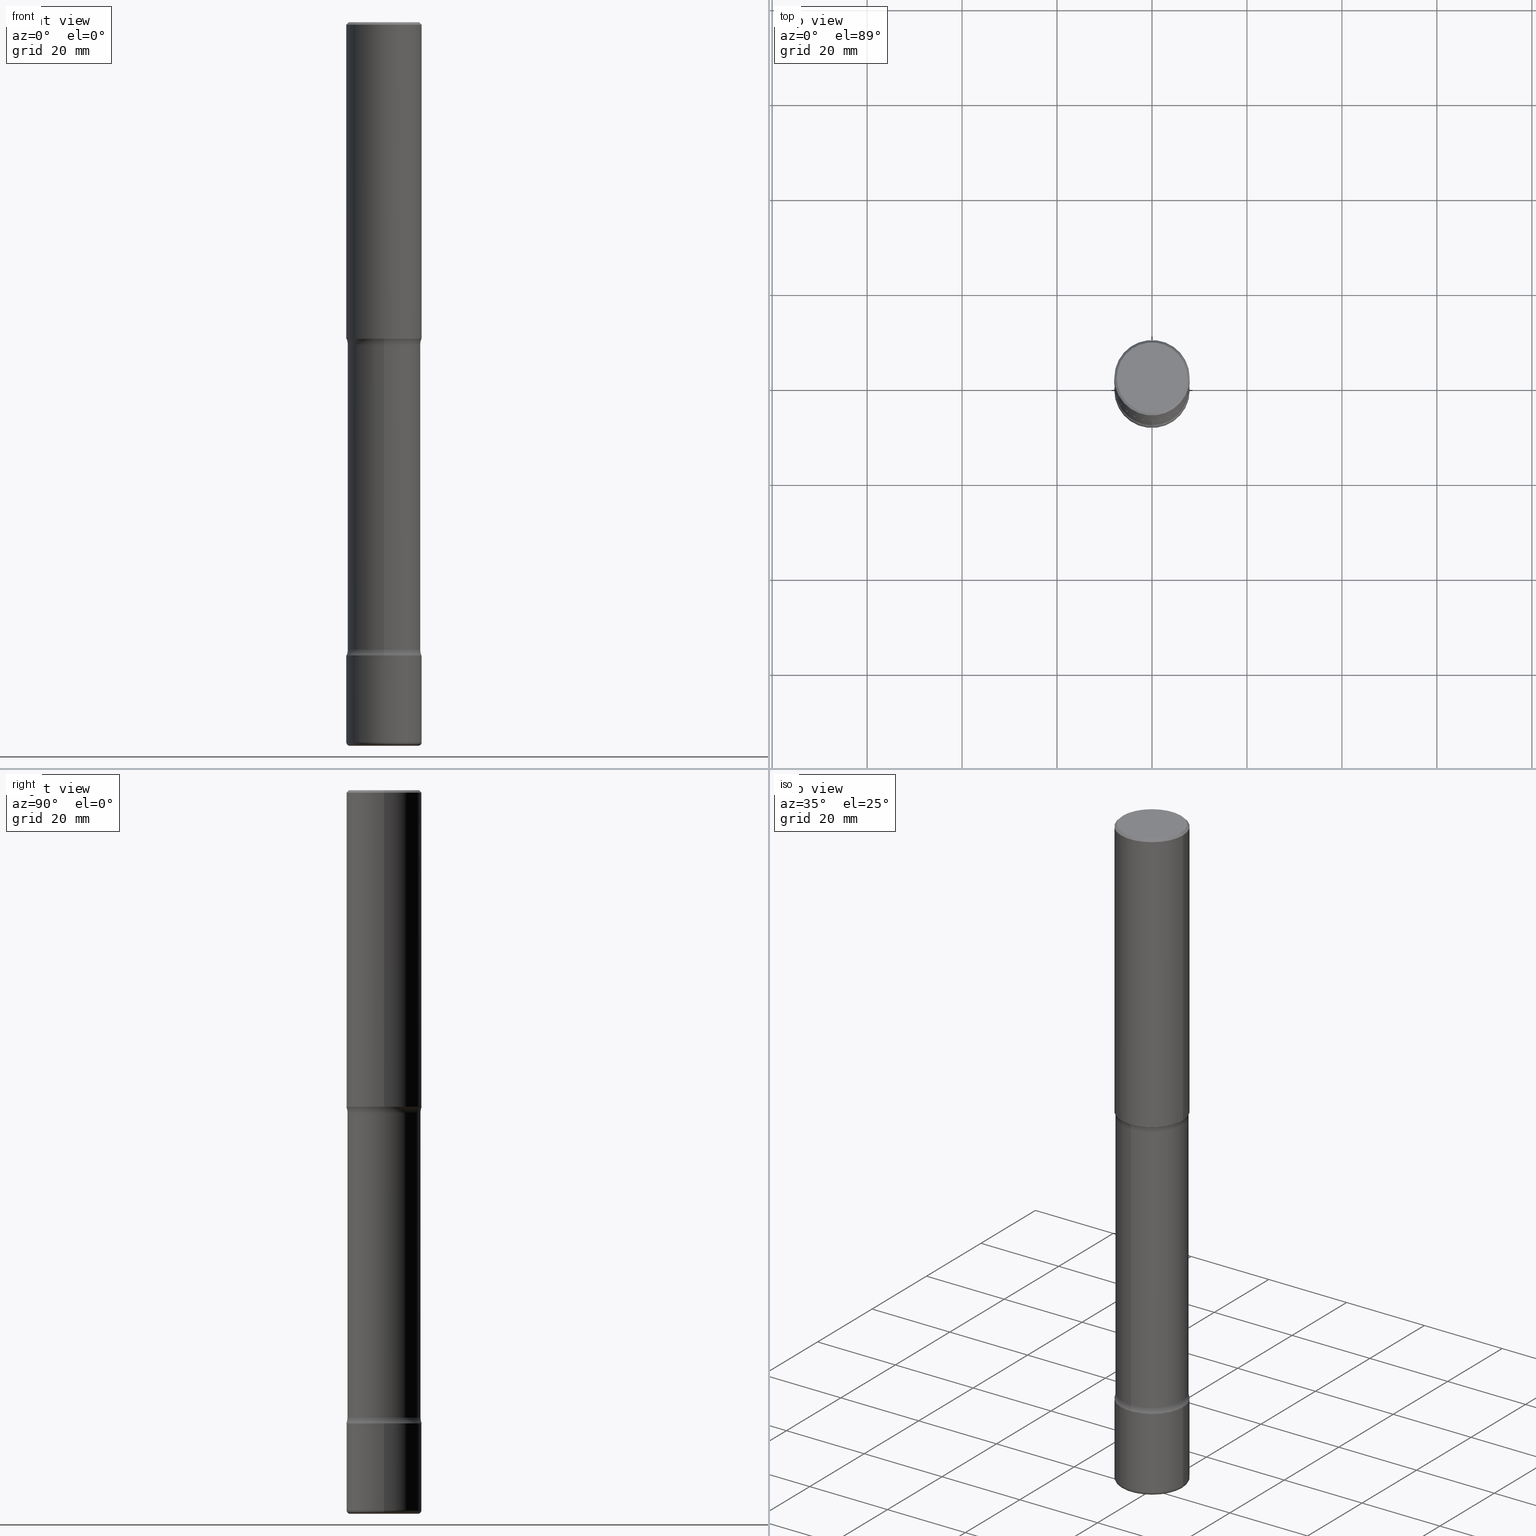
[diagram: canonical four-view strip — front | top / right | iso, engineering-drawing reading convention]
A machine part, canonical four-view strip (front | top / right | iso — engineering-drawing reading convention). The complete STEP part file that produces these views, byte-faithful:
ISO-10303-21;
HEADER;
FILE_DESCRIPTION (( 'STEP AP203' ),
    '1' );
FILE_NAME ('33517.STEP',
    '2024-03-01T22:43:29',
    ( '' ),
    ( '' ),
    'SwSTEP 2.0',
    'SolidWorks 2023',
    '' );
FILE_SCHEMA (( 'CONFIG_CONTROL_DESIGN' ));
ENDSEC;

DATA;
#1 = DIRECTION ( 'NONE',  ( 6.982962677686265922E-15, 1.000000000000000000, -3.172765739582314775E-15 ) ) ;
#2 = CARTESIAN_POINT ( 'NONE',  ( -2.075300644325741948E-15, -0.3025000000000210298, -5.999999999999999112 ) ) ;
#3 = VECTOR ( 'NONE', #497, 39.37007874015748143 ) ;
#4 = CARTESIAN_POINT ( 'NONE',  ( 4.890937612370273159E-31, -6.982962677686291609E-17, -0.02000000000000000042 ) ) ;
#5 = FACE_OUTER_BOUND ( 'NONE', #240, .T. ) ;
#6 = EDGE_CURVE ( 'NONE', #107, #528, #229, .T. ) ;
#7 = EDGE_LOOP ( 'NONE', ( #242, #445, #331, #189 ) ) ;
#8 = ADVANCED_FACE ( 'NONE', ( #440 ), #227, .T. ) ;
#9 = CIRCLE ( 'NONE', #527, 0.2825000000000000844 ) ;
#10 = LINE ( 'NONE', #378, #143 ) ;
#11 = CIRCLE ( 'NONE', #512, 0.1250000000000001943 ) ;
#12 = LOCAL_TIME ( 17, 43, 29.00000000000000000, #75 ) ;
#13 = VERTEX_POINT ( 'NONE', #552 ) ;
#14 = APPLICATION_CONTEXT ( 'configuration controlled 3d designs of mechanical parts and assemblies' ) ;
#15 = EDGE_LOOP ( 'NONE', ( #413, #69 ) ) ;
#16 = DIRECTION ( 'NONE',  ( -1.000000000000000000, 7.105427357600945061E-15, 0.000000000000000000 ) ) ;
#17 = EDGE_CURVE ( 'NONE', #279, #203, #368, .T. ) ;
#18 = ORIENTED_EDGE ( 'NONE', *, *, #385, .F. ) ;
#19 = DIRECTION ( 'NONE',  ( -2.445468806185136597E-29, 3.491481338843145583E-15, 1.000000000000000000 ) ) ;
#20 = VERTEX_POINT ( 'NONE', #343 ) ;
#21 = CONICAL_SURFACE ( 'NONE', #164, 0.3125000000000005551, 0.7853981633974463916 ) ;
#22 = VERTEX_POINT ( 'NONE', #116 ) ;
#23 = CIRCLE ( 'NONE', #230, 0.3125000000000001665 ) ;
#24 = ORIENTED_EDGE ( 'NONE', *, *, #551, .F. ) ;
#25 = VERTEX_POINT ( 'NONE', #35 ) ;
#26 = DIRECTION ( 'NONE',  ( 6.982962677686265922E-15, 1.000000000000000000, -3.496765431890244692E-15 ) ) ;
#27 = EDGE_LOOP ( 'NONE', ( #24, #145, #334, #228 ) ) ;
#28 = PRODUCT ( '33517', '33517', '', ( #423 ) ) ;
#29 = VERTEX_POINT ( 'NONE', #32 ) ;
#30 = PLANE ( 'NONE',  #165 ) ;
#31 = EDGE_LOOP ( 'NONE', ( #110, #282, #100, #56 ) ) ;
#32 = CARTESIAN_POINT ( 'NONE',  ( 2.112346210000159735E-15, 0.3024999999999904987, -2.673989794855665902 ) ) ;
#33 = AXIS2_PLACEMENT_3D ( 'NONE', #303, #539, #140 ) ;
#34 = EDGE_CURVE ( 'NONE', #102, #487, #118, .T. ) ;
#35 = CARTESIAN_POINT ( 'NONE',  ( 0.3125000000000001665, -2.051245286570347946E-14, -5.250000000000000888 ) ) ;
#36 = CARTESIAN_POINT ( 'NONE',  ( -1.043851414335219820E-46, 1.490343170380447200E-32, 4.268512490100411279E-18 ) ) ;
#37 = DIRECTION ( 'NONE',  ( 2.668026719628616344E-29, -3.172765739582314775E-15, -1.000000000000000000 ) ) ;
#38 = CARTESIAN_POINT ( 'NONE',  ( 0.000000000000000000, 0.000000000000000000, 0.000000000000000000 ) ) ;
#39 = DIRECTION ( 'NONE',  ( 2.668026719628616344E-29, -3.172765739582314775E-15, -1.000000000000000000 ) ) ;
#40 = AXIS2_PLACEMENT_3D ( 'NONE', #294, #117, #146 ) ;
#41 =( LENGTH_UNIT ( ) NAMED_UNIT ( * ) SI_UNIT ( $, .METRE. ) );
#42 = COORDINATED_UNIVERSAL_TIME_OFFSET ( 5, 0, .BEHIND. ) ;
#43 = DIRECTION ( 'NONE',  ( -2.445468806185136597E-29, 3.491481338843145583E-15, 1.000000000000000000 ) ) ;
#44 = ADVANCED_FACE ( 'NONE', ( #465 ), #550, .T. ) ;
#45 = CARTESIAN_POINT ( 'NONE',  ( -0.3125000000000002220, -1.862369754364326626E-14, -5.969999999999999751 ) ) ;
#46 = FACE_OUTER_BOUND ( 'NONE', #139, .T. ) ;
#47 = EDGE_CURVE ( 'NONE', #277, #185, #442, .T. ) ;
#48 = APPROVAL_STATUS ( 'not_yet_approved' ) ;
#49 = AXIS2_PLACEMENT_3D ( 'NONE', #152, #366, #60 ) ;
#50 = CARTESIAN_POINT ( 'NONE',  ( -0.3125000000000005551, 2.112346210000099388E-15, -0.02000000000000000042 ) ) ;
#51 = CARTESIAN_POINT ( 'NONE',  ( 0.000000000000000000, 0.000000000000000000, 0.000000000000000000 ) ) ;
#52 = ORIENTED_EDGE ( 'NONE', *, *, #385, .T. ) ;
#53 = ORIENTED_EDGE ( 'NONE', *, *, #508, .T. ) ;
#54 = AXIS2_PLACEMENT_3D ( 'NONE', #195, #148, #486 ) ;
#55 = AXIS2_PLACEMENT_3D ( 'NONE', #548, #157, #544 ) ;
#56 = ORIENTED_EDGE ( 'NONE', *, *, #477, .F. ) ;
#57 = DATE_AND_TIME ( #101, #538 ) ;
#58 = ORIENTED_EDGE ( 'NONE', *, *, #466, .F. ) ;
#59 = DIRECTION ( 'NONE',  ( -6.982962677686267499E-15, -1.000000000000000000, 0.000000000000000000 ) ) ;
#60 = DIRECTION ( 'NONE',  ( 1.000000000000000000, -6.982962677686267499E-15, 4.883557194083113462E-29 ) ) ;
#61 = EDGE_LOOP ( 'NONE', ( #187, #335 ) ) ;
#62 = CARTESIAN_POINT ( 'NONE',  ( -0.3125000000000007216, 2.220446049250318208E-15, -1.537167215704661595E-29 ) ) ;
#63 = CARTESIAN_POINT ( 'NONE',  ( 2.985216544710942680E-15, 0.4274999999999904432, -2.673989794855665902 ) ) ;
#64 = ADVANCED_FACE ( 'NONE', ( #507 ), #511, .T. ) ;
#65 = CARTESIAN_POINT ( 'NONE',  ( 1.459944877292526494E-28, -2.084414359289357934E-14, -5.969999999999999751 ) ) ;
#66 = CIRCLE ( 'NONE', #383, 0.2925000000000006484 ) ;
#67 = EDGE_LOOP ( 'NONE', ( #498, #53, #149, #411 ) ) ;
#68 = CARTESIAN_POINT ( 'NONE',  ( 2.985216544711005789E-15, 0.4274999999999818390, -5.201010205144337206 ) ) ;
#69 = ORIENTED_EDGE ( 'NONE', *, *, #495, .T. ) ;
#70 = CARTESIAN_POINT ( 'NONE',  ( -2.109603134314618744E-15, -0.3025000000000181433, -5.201010205144335430 ) ) ;
#71 = PLANE ( 'NONE',  #172 ) ;
#72 = EDGE_LOOP ( 'NONE', ( #541, #400, #367, #493 ) ) ;
#73 = PLANE ( 'NONE',  #456 ) ;
#74 = FACE_OUTER_BOUND ( 'NONE', #530, .T. ) ;
#75 = COORDINATED_UNIVERSAL_TIME_OFFSET ( 5, 0, .BEHIND. ) ;
#76 = AXIS2_PLACEMENT_3D ( 'NONE', #65, #113, #375 ) ;
#77 = CIRCLE ( 'NONE', #536, 0.3125000000000005551 ) ;
#78 =( CONVERSION_BASED_UNIT ( 'INCH', #513 ) LENGTH_UNIT ( ) NAMED_UNIT ( #268 ) );
#79 = DIRECTION ( 'NONE',  ( 1.000000000000000000, -6.982962677686265922E-15, 4.876176775795935793E-29 ) ) ;
#80 = CYLINDRICAL_SURFACE ( 'NONE', #276, 0.3125000000000001665 ) ;
#81 = DIRECTION ( 'NONE',  ( -2.445468806185136597E-29, 3.491481338843145583E-15, 1.000000000000000000 ) ) ;
#82 = DIRECTION ( 'NONE',  ( -2.445468806185136597E-29, 3.491481338843145583E-15, 1.000000000000000000 ) ) ;
#83 = DIRECTION ( 'NONE',  ( 0.000000000000000000, 0.000000000000000000, 1.000000000000000000 ) ) ;
#84 = CLOSED_SHELL ( 'NONE', ( #537, #424, #451, #198, #359, #170, #250, #373 ) ) ;
#85 = TOROIDAL_SURFACE ( 'NONE', #193, 0.4274999999999999911, 0.1250000000000001943 ) ;
#86 = DIRECTION ( 'NONE',  ( 6.860497997771530774E-15, 1.000000000000000000, 0.000000000000000000 ) ) ;
#87 = PERSON_AND_ORGANIZATION ( #514, #394 ) ;
#88 = CARTESIAN_POINT ( 'NONE',  ( -2.143905624303476607E-15, -0.3125000000000185962, -5.250000000000000000 ) ) ;
#89 = APPLICATION_PROTOCOL_DEFINITION ( 'international standard', 'config_control_design', 1994, #270 ) ;
#90 = CARTESIAN_POINT ( 'NONE',  ( -0.3125000000000005551, 2.112346210000099388E-15, -0.02000000000000000042 ) ) ;
#91 = PERSON_AND_ORGANIZATION ( #514, #394 ) ;
#92 = DIRECTION ( 'NONE',  ( 2.668026719628616344E-29, -3.172765739582314775E-15, -1.000000000000000000 ) ) ;
#93 = ADVANCED_FACE ( 'NONE', ( #163 ), #71, .F. ) ;
#94 = SHAPE_DEFINITION_REPRESENTATION ( #200, #291 ) ;
#95 = DIRECTION ( 'NONE',  ( -1.000000000000000000, 6.982962677686265922E-15, -4.876176775795935793E-29 ) ) ;
#96 = AXIS2_PLACEMENT_3D ( 'NONE', #434, #92, #1 ) ;
#97 = VECTOR ( 'NONE', #425, 39.37007874015748143 ) ;
#98 = EDGE_CURVE ( 'NONE', #487, #25, #370, .T. ) ;
#99 = EDGE_LOOP ( 'NONE', ( #134, #364, #58, #133 ) ) ;
#100 = ORIENTED_EDGE ( 'NONE', *, *, #553, .F. ) ;
#101 = CALENDAR_DATE ( 2024, 1, 3 ) ;
#102 = VERTEX_POINT ( 'NONE', #45 ) ;
#103 = ORIENTED_EDGE ( 'NONE', *, *, #516, .T. ) ;
#104 = CARTESIAN_POINT ( 'NONE',  ( 1.270800515080793348E-28, -1.817484388621929912E-14, -5.201010205144336318 ) ) ;
#105 = CARTESIAN_POINT ( 'NONE',  ( -0.2825000000000001399, -1.883686036437129492E-14, -5.969999999999999751 ) ) ;
#106 = EDGE_CURVE ( 'NONE', #280, #326, #130, .T. ) ;
#107 = VERTEX_POINT ( 'NONE', #50 ) ;
#108 = LINE ( 'NONE', #62, #214 ) ;
#109 = FACE_OUTER_BOUND ( 'NONE', #67, .T. ) ;
#110 = ORIENTED_EDGE ( 'NONE', *, *, #141, .T. ) ;
#111 = CARTESIAN_POINT ( 'NONE',  ( 2.112346210000246116E-15, 0.3024999999999796185, -6.000000000000001776 ) ) ;
#112 = AXIS2_PLACEMENT_3D ( 'NONE', #356, #468, #79 ) ;
#113 = DIRECTION ( 'NONE',  ( -2.445468806185136597E-29, 3.491481338843145583E-15, 1.000000000000000000 ) ) ;
#114 = TOROIDAL_SURFACE ( 'NONE', #393, 0.4275000000000007128, 0.1250000000000000000 ) ;
#115 = CARTESIAN_POINT ( 'NONE',  ( -0.3125000000000001665, -1.736676426165973636E-14, -5.250000000000000888 ) ) ;
#116 = CARTESIAN_POINT ( 'NONE',  ( -2.143905624303553126E-15, -0.3125000000000112133, -2.624999999999999556 ) ) ;
#117 = DIRECTION ( 'NONE',  ( 2.668026719628616344E-29, -3.172765739582314775E-15, -1.000000000000000000 ) ) ;
#118 = LINE ( 'NONE', #209, #272 ) ;
#119 = CARTESIAN_POINT ( 'NONE',  ( 1.483973127219342911E-28, -2.070985133361325197E-14, -6.000000000000000888 ) ) ;
#120 = VECTOR ( 'NONE', #524, 39.37007874015748143 ) ;
#121 = COORDINATED_UNIVERSAL_TIME_OFFSET ( 5, 0, .BEHIND. ) ;
#122 = AXIS2_PLACEMENT_3D ( 'NONE', #262, #432, #533 ) ;
#123 = DIRECTION ( 'NONE',  ( 1.000000000000000000, -6.982962677686261977E-15, 0.000000000000000000 ) ) ;
#124 = DIRECTION ( 'NONE',  ( -6.982962677686265922E-15, -1.000000000000000000, 3.172765739582314775E-15 ) ) ;
#125 = CARTESIAN_POINT ( 'NONE',  ( 0.000000000000000000, 0.000000000000000000, 0.000000000000000000 ) ) ;
#126 = PRODUCT_DEFINITION ( 'UNKNOWN', '', #166, #321 ) ;
#127 = CARTESIAN_POINT ( 'NONE',  ( 4.890937612370273159E-31, -6.982962677686291609E-17, -0.02000000000000000042 ) ) ;
#128 = AXIS2_PLACEMENT_3D ( 'NONE', #224, #480, #517 ) ;
#129 = DIRECTION ( 'NONE',  ( 1.000000000000000000, -6.860497997771530774E-15, 4.844702020008874772E-29 ) ) ;
#130 = LINE ( 'NONE', #2, #120 ) ;
#131 = DIRECTION ( 'NONE',  ( -2.445468806185136597E-29, 3.491481338843145583E-15, 1.000000000000000000 ) ) ;
#132 = CARTESIAN_POINT ( 'NONE',  ( -2.109603134314693686E-15, -0.3025000000000108158, -2.673989794855663682 ) ) ;
#133 = ORIENTED_EDGE ( 'NONE', *, *, #404, .F. ) ;
#134 = ORIENTED_EDGE ( 'NONE', *, *, #308, .T. ) ;
#135 = CC_DESIGN_PERSON_AND_ORGANIZATION_ASSIGNMENT ( #317, #305, ( #166 ) ) ;
#136 = ORIENTED_EDGE ( 'NONE', *, *, #137, .T. ) ;
#137 = EDGE_CURVE ( 'NONE', #280, #22, #247, .T. ) ;
#138 = ORIENTED_EDGE ( 'NONE', *, *, #278, .F. ) ;
#139 = EDGE_LOOP ( 'NONE', ( #160, #231, #446, #419 ) ) ;
#140 = DIRECTION ( 'NONE',  ( 1.000000000000000000, -6.982962677686223323E-15, 0.000000000000000000 ) ) ;
#141 = EDGE_CURVE ( 'NONE', #443, #102, #379, .T. ) ;
#142 = AXIS2_PLACEMENT_3D ( 'NONE', #269, #131, #258 ) ;
#143 = VECTOR ( 'NONE', #505, 39.37007874015748143 ) ;
#144 = SECURITY_CLASSIFICATION ( '', '', #264 ) ;
#145 = ORIENTED_EDGE ( 'NONE', *, *, #167, .F. ) ;
#146 = DIRECTION ( 'NONE',  ( 6.982962677686266711E-15, 1.000000000000000000, -3.612360983357695736E-15 ) ) ;
#147 = ORIENTED_EDGE ( 'NONE', *, *, #491, .T. ) ;
#148 = DIRECTION ( 'NONE',  ( -2.445468806185136597E-29, 3.491481338843145583E-15, 1.000000000000000000 ) ) ;
#149 = ORIENTED_EDGE ( 'NONE', *, *, #404, .T. ) ;
#150 = ORIENTED_EDGE ( 'NONE', *, *, #255, .F. ) ;
#151 = DIRECTION ( 'NONE',  ( 1.000000000000000000, -6.982962677686267499E-15, 4.876067333457678827E-29 ) ) ;
#152 = CARTESIAN_POINT ( 'NONE',  ( 1.459944877292526494E-28, -2.084414359289357934E-14, -5.969999999999999751 ) ) ;
#153 = AXIS2_PLACEMENT_3D ( 'NONE', #51, #418, #248 ) ;
#154 = CIRCLE ( 'NONE', #363, 0.3025000000000006573 ) ;
#155 = DIRECTION ( 'NONE',  ( 2.668026719628616344E-29, -3.172765739582314775E-15, -1.000000000000000000 ) ) ;
#156 = AXIS2_PLACEMENT_3D ( 'NONE', #125, #83, #430 ) ;
#157 = DIRECTION ( 'NONE',  ( 2.668026719628616344E-29, -3.172765739582314775E-15, -1.000000000000000000 ) ) ;
#158 = APPROVAL_ROLE ( '' ) ;
#159 = DIRECTION ( 'NONE',  ( 2.668026719628616344E-29, -3.172765739582314775E-15, -1.000000000000000000 ) ) ;
#160 = ORIENTED_EDGE ( 'NONE', *, *, #304, .F. ) ;
#161 = LINE ( 'NONE', #90, #97 ) ;
#162 = DATE_AND_TIME ( #555, #403 ) ;
#163 = FACE_OUTER_BOUND ( 'NONE', #15, .T. ) ;
#164 = AXIS2_PLACEMENT_3D ( 'NONE', #4, #171, #168 ) ;
#165 = AXIS2_PLACEMENT_3D ( 'NONE', #289, #207, #199 ) ;
#166 = PRODUCT_DEFINITION_FORMATION_WITH_SPECIFIED_SOURCE ( 'ANY', '', #28, .NOT_KNOWN. ) ;
#167 = EDGE_CURVE ( 'NONE', #185, #277, #208, .T. ) ;
#168 = DIRECTION ( 'NONE',  ( -1.000000000000000000, 6.982962677686266711E-15, 0.000000000000000000 ) ) ;
#169 = DIRECTION ( 'NONE',  ( 1.000000000000000000, -6.982962677686268288E-15, 0.000000000000000000 ) ) ;
#170 = ADVANCED_FACE ( 'NONE', ( #5 ), #478, .F. ) ;
#171 = DIRECTION ( 'NONE',  ( 2.445468806185136597E-29, -3.491481338843145583E-15, -1.000000000000000000 ) ) ;
#172 = AXIS2_PLACEMENT_3D ( 'NONE', #522, #392, #95 ) ;
#173 = AXIS2_PLACEMENT_3D ( 'NONE', #63, #204, #455 ) ;
#174 = APPROVAL_PERSON_ORGANIZATION ( #482, #546, #342 ) ;
#175 = PLANE ( 'NONE',  #112 ) ;
#176 = EDGE_CURVE ( 'NONE', #326, #192, #221, .T. ) ;
#177 = UNCERTAINTY_MEASURE_WITH_UNIT (LENGTH_MEASURE( 1.000000000000000082E-05 ), #78, 'distance_accuracy_value', 'NONE');
#178 = DIRECTION ( 'NONE',  ( -2.668026719628615784E-29, 3.172765739582314775E-15, 1.000000000000000000 ) ) ;
#179 = APPROVAL_DATE_TIME ( #274, #401 ) ;
#180 = APPROVAL_STATUS ( 'not_yet_approved' ) ;
#181 = ORIENTED_EDGE ( 'NONE', *, *, #47, .T. ) ;
#182 = CC_DESIGN_PERSON_AND_ORGANIZATION_ASSIGNMENT ( #559, #252, ( #144 ) ) ;
#183 = TOROIDAL_SURFACE ( 'NONE', #500, 0.4274999999999999911, 0.1250000000000001943 ) ;
#184 = AXIS2_PLACEMENT_3D ( 'NONE', #119, #37, #212 ) ;
#185 = VERTEX_POINT ( 'NONE', #357 ) ;
#186 =( NAMED_UNIT ( * ) SI_UNIT ( $, .STERADIAN. ) SOLID_ANGLE_UNIT ( ) );
#187 = ORIENTED_EDGE ( 'NONE', *, *, #516, .F. ) ;
#188 = ADVANCED_FACE ( 'NONE', ( #46 ), #21, .T. ) ;
#189 = ORIENTED_EDGE ( 'NONE', *, *, #6, .F. ) ;
#190 = CARTESIAN_POINT ( 'NONE',  ( 1.483973127219342911E-28, -2.070985133361325197E-14, -6.000000000000000888 ) ) ;
#191 = AXIS2_PLACEMENT_3D ( 'NONE', #266, #43, #123 ) ;
#192 = VERTEX_POINT ( 'NONE', #215 ) ;
#193 = AXIS2_PLACEMENT_3D ( 'NONE', #336, #547, #338 ) ;
#194 = AXIS2_PLACEMENT_3D ( 'NONE', #241, #415, #376 ) ;
#195 = CARTESIAN_POINT ( 'NONE',  ( 4.890937612370273159E-31, -6.982962677686291609E-17, -0.02000000000000000042 ) ) ;
#196 = EDGE_LOOP ( 'NONE', ( #531, #136, #235, #360 ) ) ;
#197 = ORIENTED_EDGE ( 'NONE', *, *, #47, .F. ) ;
#198 = ADVANCED_FACE ( 'NONE', ( #388 ), #295, .F. ) ;
#199 = DIRECTION ( 'NONE',  ( 6.982962677686265922E-15, 1.000000000000000000, -3.172765739582314775E-15 ) ) ;
#200 = PRODUCT_DEFINITION_SHAPE ( 'NONE', 'NONE',  #126 ) ;
#201 = CARTESIAN_POINT ( 'NONE',  ( 6.419355616235983567E-29, -9.165138514463256612E-15, -2.625000000000000000 ) ) ;
#202 = DIRECTION ( 'NONE',  ( -1.000000000000000000, 6.982962677686265922E-15, -4.876176775795935793E-29 ) ) ;
#203 = VERTEX_POINT ( 'NONE', #427 ) ;
#204 = DIRECTION ( 'NONE',  ( -1.000000000000000000, 6.982962677686265922E-15, -4.883557194083112901E-29 ) ) ;
#205 = DIRECTION ( 'NONE',  ( -1.000000000000000000, 6.982962677686265922E-15, -4.883557194083112901E-29 ) ) ;
#206 = VERTEX_POINT ( 'NONE', #220 ) ;
#207 = DIRECTION ( 'NONE',  ( 2.668026719628615784E-29, -3.172765739582314775E-15, -1.000000000000000000 ) ) ;
#208 = CIRCLE ( 'NONE', #128, 0.3125000000000001665 ) ;
#209 = CARTESIAN_POINT ( 'NONE',  ( -0.3125000000000001665, 2.220446049250314264E-15, -1.537167215704658792E-29 ) ) ;
#210 = APPROVAL_PERSON_ORGANIZATION ( #226, #358, #158 ) ;
#211 = EDGE_CURVE ( 'NONE', #540, #20, #322, .T. ) ;
#212 = DIRECTION ( 'NONE',  ( 6.982962677686265922E-15, 1.000000000000000000, -3.612360983357699681E-15 ) ) ;
#213 = CARTESIAN_POINT ( 'NONE',  ( 1.467281283711081958E-28, -2.094888803305887271E-14, -6.000000000000000888 ) ) ;
#214 = VECTOR ( 'NONE', #236, 39.37007874015748143 ) ;
#215 = CARTESIAN_POINT ( 'NONE',  ( 2.112346210000222450E-15, 0.3024999999999818390, -5.201010205144337206 ) ) ;
#216 = DIRECTION ( 'NONE',  ( 1.000000000000000000, -6.982962677686267499E-15, 4.876067333457678827E-29 ) ) ;
#217 = APPROVAL_DATE_TIME ( #162, #546 ) ;
#218 = ADVANCED_FACE ( 'NONE', ( #470 ), #175, .F. ) ;
#219 = CARTESIAN_POINT ( 'NONE',  ( 1.270800515080793348E-28, -1.817484388621929912E-14, -5.201010205144336318 ) ) ;
#220 = CARTESIAN_POINT ( 'NONE',  ( 2.182175836777024217E-15, 0.3124999999999911182, -2.625000000000000444 ) ) ;
#221 = CIRCLE ( 'NONE', #526, 0.3024999999999999911 ) ;
#222 = CIRCLE ( 'NONE', #122, 0.3125000000000000555 ) ;
#223 = APPROVAL_PERSON_ORGANIZATION ( #87, #401, #510 ) ;
#224 = CARTESIAN_POINT ( 'NONE',  ( 1.283871123247196938E-28, -1.833027702892651638E-14, -5.250000000000000888 ) ) ;
#225 = PERSON_AND_ORGANIZATION_ROLE ( 'creator' ) ;
#226 = PERSON_AND_ORGANIZATION ( #514, #394 ) ;
#227 = CYLINDRICAL_SURFACE ( 'NONE', #153, 0.3125000000000001665 ) ;
#228 = ORIENTED_EDGE ( 'NONE', *, *, #466, .T. ) ;
#229 = CIRCLE ( 'NONE', #54, 0.3125000000000005551 ) ;
#230 = AXIS2_PLACEMENT_3D ( 'NONE', #251, #431, #261 ) ;
#231 = ORIENTED_EDGE ( 'NONE', *, *, #437, .F. ) ;
#232 = ORIENTED_EDGE ( 'NONE', *, *, #308, .F. ) ;
#233 = CARTESIAN_POINT ( 'NONE',  ( 1.283871123247196938E-28, -1.833027702892651638E-14, -5.250000000000000888 ) ) ;
#234 = CARTESIAN_POINT ( 'NONE',  ( -0.3125000000000008327, -2.397038021369739380E-15, -2.625000000000000000 ) ) ;
#235 = ORIENTED_EDGE ( 'NONE', *, *, #354, .T. ) ;
#236 = DIRECTION ( 'NONE',  ( -2.445468806185136877E-29, 3.491481338843145188E-15, 1.000000000000000000 ) ) ;
#237 = DIRECTION ( 'NONE',  ( 7.105427357601001859E-15, 1.000000000000000000, -3.491481338843145583E-15 ) ) ;
#238 = AXIS2_PLACEMENT_3D ( 'NONE', #382, #159, #556 ) ;
#239 = CIRCLE ( 'NONE', #40, 0.3025000000000006573 ) ;
#240 = EDGE_LOOP ( 'NONE', ( #488, #181 ) ) ;
#241 = CARTESIAN_POINT ( 'NONE',  ( 0.000000000000000000, 0.000000000000000000, 0.000000000000000000 ) ) ;
#242 = ORIENTED_EDGE ( 'NONE', *, *, #491, .F. ) ;
#243 = CC_DESIGN_DATE_AND_TIME_ASSIGNMENT ( #312, #433, ( #144 ) ) ;
#244 = CYLINDRICAL_SURFACE ( 'NONE', #194, 0.3125000000000007216 ) ;
#245 = CARTESIAN_POINT ( 'NONE',  ( 1.467281283711081958E-28, -2.094888803305887271E-14, -6.000000000000000888 ) ) ;
#246 = CALENDAR_DATE ( 2024, 1, 3 ) ;
#247 = CIRCLE ( 'NONE', #259, 0.1250000000000000000 ) ;
#248 = DIRECTION ( 'NONE',  ( 1.000000000000000000, -6.982962677686266711E-15, 4.876176775795935232E-29 ) ) ;
#249 = TOROIDAL_SURFACE ( 'NONE', #49, 0.2825000000000001399, 0.03000000000000021053 ) ;
#250 = ADVANCED_FACE ( 'NONE', ( #254 ), #183, .F. ) ;
#251 = CARTESIAN_POINT ( 'NONE',  ( 1.283871123247196938E-28, -1.833027702892651638E-14, -5.250000000000000888 ) ) ;
#252 = PERSON_AND_ORGANIZATION_ROLE ( 'classification_officer' ) ;
#253 = CC_DESIGN_PERSON_AND_ORGANIZATION_ASSIGNMENT ( #444, #225, ( #126 ) ) ;
#254 = FACE_OUTER_BOUND ( 'NONE', #27, .T. ) ;
#255 = EDGE_CURVE ( 'NONE', #20, #540, #9, .T. ) ;
#256 = CARTESIAN_POINT ( 'NONE',  ( -0.2825000000000000844, -1.878265117408992254E-14, -6.000000000000000888 ) ) ;
#257 = PERSON_AND_ORGANIZATION_ROLE ( 'design_supplier' ) ;
#258 = DIRECTION ( 'NONE',  ( 1.000000000000000000, -6.982962677686271444E-15, 0.000000000000000000 ) ) ;
#259 = AXIS2_PLACEMENT_3D ( 'NONE', #348, #318, #436 ) ;
#260 = AXIS2_PLACEMENT_3D ( 'NONE', #341, #461, #26 ) ;
#261 = DIRECTION ( 'NONE',  ( 1.000000000000000000, -6.982962677686271444E-15, 0.000000000000000000 ) ) ;
#262 = CARTESIAN_POINT ( 'NONE',  ( 1.459944877292526494E-28, -2.084414359289357934E-14, -5.969999999999999751 ) ) ;
#263 = CALENDAR_DATE ( 2024, 1, 3 ) ;
#264 = SECURITY_CLASSIFICATION_LEVEL ( 'unclassified' ) ;
#265 = MANIFOLD_SOLID_BREP ( 'Body-Move/Copy2[4]', #84 ) ;
#266 = CARTESIAN_POINT ( 'NONE',  ( 1.459944877292526494E-28, -2.084414359289357934E-14, -5.969999999999999751 ) ) ;
#267 = MANIFOLD_SOLID_BREP ( 'Body-Move/Copy2[1]', #520 ) ;
#268 = DIMENSIONAL_EXPONENTS ( 1.000000000000000000, 0.000000000000000000, 0.000000000000000000, 0.000000000000000000, 0.000000000000000000, 0.000000000000000000, 0.000000000000000000 ) ;
#269 = CARTESIAN_POINT ( 'NONE',  ( 1.283871123247196938E-28, -1.833027702892651638E-14, -5.250000000000000888 ) ) ;
#270 = APPLICATION_CONTEXT ( 'configuration controlled 3d designs of mechanical parts and assemblies' ) ;
#271 = MANIFOLD_SOLID_BREP ( 'Body-Move/Copy2[2]', #399 ) ;
#272 = VECTOR ( 'NONE', #306, 39.37007874015748143 ) ;
#273 = PERSON_AND_ORGANIZATION_ROLE ( 'design_owner' ) ;
#274 = DATE_AND_TIME ( #263, #474 ) ;
#275 = ADVANCED_FACE ( 'NONE', ( #518 ), #421, .T. ) ;
#276 = AXIS2_PLACEMENT_3D ( 'NONE', #352, #554, #471 ) ;
#277 = VERTEX_POINT ( 'NONE', #88 ) ;
#278 = EDGE_CURVE ( 'NONE', #102, #443, #222, .T. ) ;
#279 = VERTEX_POINT ( 'NONE', #234 ) ;
#280 = VERTEX_POINT ( 'NONE', #132 ) ;
#281 = EDGE_LOOP ( 'NONE', ( #410, #542, #484, #292 ) ) ;
#282 = ORIENTED_EDGE ( 'NONE', *, *, #34, .T. ) ;
#283 = CIRCLE ( 'NONE', #173, 0.1250000000000000000 ) ;
#284 = EDGE_LOOP ( 'NONE', ( #197, #330, #450, #454 ) ) ;
#285 = DIRECTION ( 'NONE',  ( 2.668026719628616344E-29, -3.172765739582314775E-15, -1.000000000000000000 ) ) ;
#286 = CYLINDRICAL_SURFACE ( 'NONE', #426, 0.3025000000000003242 ) ;
#287 = ORIENTED_EDGE ( 'NONE', *, *, #525, .F. ) ;
#288 = LINE ( 'NONE', #545, #340 ) ;
#289 = CARTESIAN_POINT ( 'NONE',  ( 6.419355616235983567E-29, -9.165138514463256612E-15, -2.625000000000000000 ) ) ;
#290 = DIRECTION ( 'NONE',  ( 1.000000000000000000, -6.982962677686265922E-15, 4.876176775795935793E-29 ) ) ;
#291 = ADVANCED_BREP_SHAPE_REPRESENTATION ( '33517', ( #267, #271, #265, #156 ), #521 ) ;
#292 = ORIENTED_EDGE ( 'NONE', *, *, #557, .F. ) ;
#293 = ORIENTED_EDGE ( 'NONE', *, *, #137, .F. ) ;
#294 = CARTESIAN_POINT ( 'NONE',  ( 5.965847175110887226E-29, -1.015720010523015908E-14, -2.673989794855665014 ) ) ;
#295 = TOROIDAL_SURFACE ( 'NONE', #96, 0.4275000000000007128, 0.1250000000000000000 ) ;
#296 = CC_DESIGN_PERSON_AND_ORGANIZATION_ASSIGNMENT ( #91, #257, ( #166 ) ) ;
#297 = AXIS2_PLACEMENT_3D ( 'NONE', #36, #82, #216 ) ;
#298 = CC_DESIGN_APPROVAL ( #401, ( #144 ) ) ;
#299 = DIRECTION ( 'NONE',  ( -2.445468806185136597E-29, 3.491481338843145583E-15, 1.000000000000000000 ) ) ;
#300 = CARTESIAN_POINT ( 'NONE',  ( 0.3125000000000002220, -2.302631942967053926E-14, -5.969999999999999751 ) ) ;
#301 = DIRECTION ( 'NONE',  ( -2.445468806185136597E-29, 3.491481338843145583E-15, 1.000000000000000000 ) ) ;
#302 = CARTESIAN_POINT ( 'NONE',  ( 5.965847175110887226E-29, -1.015720010523015908E-14, -2.673989794855665014 ) ) ;
#303 = CARTESIAN_POINT ( 'NONE',  ( 0.2825000000000001399, -2.281683054933995252E-14, -5.969999999999999751 ) ) ;
#304 = EDGE_CURVE ( 'NONE', #407, #528, #10, .T. ) ;
#305 = PERSON_AND_ORGANIZATION_ROLE ( 'creator' ) ;
#306 = DIRECTION ( 'NONE',  ( -2.445468806185136877E-29, 3.491481338843145188E-15, 1.000000000000000000 ) ) ;
#307 = VECTOR ( 'NONE', #414, 39.37007874015748143 ) ;
#308 = EDGE_CURVE ( 'NONE', #29, #280, #239, .T. ) ;
#309 = DIRECTION ( 'NONE',  ( 1.000000000000000000, -6.982962677686274599E-15, 0.000000000000000000 ) ) ;
#310 = DIRECTION ( 'NONE',  ( 6.982962677686266711E-15, 1.000000000000000000, -3.172765739582314775E-15 ) ) ;
#311 = FACE_OUTER_BOUND ( 'NONE', #31, .T. ) ;
#312 = DATE_AND_TIME ( #387, #428 ) ;
#313 = PRODUCT_RELATED_PRODUCT_CATEGORY ( 'detail', '', ( #28 ) ) ;
#314 = DIRECTION ( 'NONE',  ( 2.445468806185136597E-29, -3.491481338843145583E-15, -1.000000000000000000 ) ) ;
#315 = DIRECTION ( 'NONE',  ( -2.445468806185136597E-29, 3.491481338843145583E-15, 1.000000000000000000 ) ) ;
#316 = CIRCLE ( 'NONE', #33, 0.03000000000000019318 ) ;
#317 = PERSON_AND_ORGANIZATION ( #514, #394 ) ;
#318 = DIRECTION ( 'NONE',  ( 1.000000000000000000, -6.860497997771530774E-15, 4.844702020008874772E-29 ) ) ;
#319 = CARTESIAN_POINT ( 'NONE',  ( 1.467281283711081958E-28, -2.094888803305887271E-14, -6.000000000000000888 ) ) ;
#320 = EDGE_CURVE ( 'NONE', #29, #206, #283, .T. ) ;
#321 = DESIGN_CONTEXT ( 'detailed design', #270, 'design' ) ;
#322 = CIRCLE ( 'NONE', #361, 0.2825000000000000844 ) ;
#323 = AXIS2_PLACEMENT_3D ( 'NONE', #233, #532, #494 ) ;
#324 = EDGE_LOOP ( 'NONE', ( #18, #328 ) ) ;
#325 = EDGE_LOOP ( 'NONE', ( #103, #147, #287, #496 ) ) ;
#326 = VERTEX_POINT ( 'NONE', #70 ) ;
#327 = ORIENTED_EDGE ( 'NONE', *, *, #477, .T. ) ;
#328 = ORIENTED_EDGE ( 'NONE', *, *, #354, .F. ) ;
#329 = CIRCLE ( 'NONE', #439, 0.1250000000000001943 ) ;
#330 = ORIENTED_EDGE ( 'NONE', *, *, #551, .T. ) ;
#331 = ORIENTED_EDGE ( 'NONE', *, *, #462, .T. ) ;
#332 = FACE_OUTER_BOUND ( 'NONE', #325, .T. ) ;
#333 = DIRECTION ( 'NONE',  ( 2.668026719628616344E-29, -3.172765739582314775E-15, -1.000000000000000000 ) ) ;
#334 = ORIENTED_EDGE ( 'NONE', *, *, #469, .T. ) ;
#335 = ORIENTED_EDGE ( 'NONE', *, *, #17, .F. ) ;
#336 = CARTESIAN_POINT ( 'NONE',  ( 1.271890821733103427E-28, -1.815923007439421067E-14, -5.201010205144336318 ) ) ;
#337 = DIRECTION ( 'NONE',  ( -2.445468806185136877E-29, 3.491481338843145188E-15, 1.000000000000000000 ) ) ;
#338 = DIRECTION ( 'NONE',  ( 6.982962677686266711E-15, 1.000000000000000000, -3.172765739582314775E-15 ) ) ;
#339 = EDGE_CURVE ( 'NONE', #540, #102, #549, .T. ) ;
#340 = VECTOR ( 'NONE', #337, 39.37007874015748143 ) ;
#341 = CARTESIAN_POINT ( 'NONE',  ( 5.835141093446850211E-29, -1.000176696252294024E-14, -2.625000000000000000 ) ) ;
#342 = APPROVAL_ROLE ( '' ) ;
#343 = CARTESIAN_POINT ( 'NONE',  ( 0.2825000000000000844, -2.292157498950524589E-14, -6.000000000000000888 ) ) ;
#344 = EDGE_CURVE ( 'NONE', #20, #443, #316, .T. ) ;
#345 = DATE_AND_TIME ( #246, #12 ) ;
#346 = CIRCLE ( 'NONE', #297, 0.2925000000000006484 ) ;
#347 = ORIENTED_EDGE ( 'NONE', *, *, #211, .F. ) ;
#348 = CARTESIAN_POINT ( 'NONE',  ( -2.932862894047274901E-15, -0.4275000000000109268, -2.673989794855663682 ) ) ;
#349 = CC_DESIGN_DATE_AND_TIME_ASSIGNMENT ( #57, #479, ( #126 ) ) ;
#350 = DIRECTION ( 'NONE',  ( 1.000000000000000000, -6.982962677686274599E-15, 0.000000000000000000 ) ) ;
#351 = DIRECTION ( 'NONE',  ( 1.000000000000000000, -6.982962677686269866E-15, 0.000000000000000000 ) ) ;
#352 = CARTESIAN_POINT ( 'NONE',  ( 0.000000000000000000, 0.000000000000000000, 0.000000000000000000 ) ) ;
#353 = DIRECTION ( 'NONE',  ( -2.445468806185136597E-29, 3.491481338843145583E-15, 1.000000000000000000 ) ) ;
#354 = EDGE_CURVE ( 'NONE', #22, #206, #490, .T. ) ;
#355 = APPROVAL_DATE_TIME ( #345, #358 ) ;
#356 = CARTESIAN_POINT ( 'NONE',  ( 6.419355616235983567E-29, -9.165138514463256612E-15, -2.625000000000000000 ) ) ;
#357 = CARTESIAN_POINT ( 'NONE',  ( 2.182175836777088115E-15, 0.3124999999999819589, -5.250000000000001776 ) ) ;
#358 = APPROVAL ( #391, 'UNSPECIFIED' ) ;
#359 = ADVANCED_FACE ( 'NONE', ( #417 ), #30, .F. ) ;
#360 = ORIENTED_EDGE ( 'NONE', *, *, #320, .F. ) ;
#361 = AXIS2_PLACEMENT_3D ( 'NONE', #319, #353, #309 ) ;
#362 = ORIENTED_EDGE ( 'NONE', *, *, #34, .F. ) ;
#363 = AXIS2_PLACEMENT_3D ( 'NONE', #302, #509, #389 ) ;
#364 = ORIENTED_EDGE ( 'NONE', *, *, #106, .T. ) ;
#365 = EDGE_LOOP ( 'NONE', ( #395, #416 ) ) ;
#366 = DIRECTION ( 'NONE',  ( -2.445468806185136597E-29, 3.491481338843145583E-15, 1.000000000000000000 ) ) ;
#367 = ORIENTED_EDGE ( 'NONE', *, *, #141, .F. ) ;
#368 = CIRCLE ( 'NONE', #420, 0.3125000000000008327 ) ;
#369 = DIRECTION ( 'NONE',  ( 6.982962677686265922E-15, 1.000000000000000000, -3.612360983357699681E-15 ) ) ;
#370 = CIRCLE ( 'NONE', #142, 0.3125000000000001665 ) ;
#371 = CIRCLE ( 'NONE', #402, 0.3024999999999999911 ) ;
#372 = ORIENTED_EDGE ( 'NONE', *, *, #339, .F. ) ;
#373 = ADVANCED_FACE ( 'NONE', ( #109 ), #286, .T. ) ;
#374 = EDGE_LOOP ( 'NONE', ( #362, #452, #327, #441 ) ) ;
#375 = DIRECTION ( 'NONE',  ( 1.000000000000000000, -6.982962677686267499E-15, 4.883557194083113462E-29 ) ) ;
#376 = DIRECTION ( 'NONE',  ( 1.000000000000000000, -6.982962677686265922E-15, 4.876176775795935793E-29 ) ) ;
#377 = CARTESIAN_POINT ( 'NONE',  ( 0.2925000000000006484, -2.110215457714323481E-15, 4.268512490114932791E-18 ) ) ;
#378 = CARTESIAN_POINT ( 'NONE',  ( 0.3125000000000005551, -2.213735251080470461E-15, -0.02000000000000000042 ) ) ;
#379 = CIRCLE ( 'NONE', #191, 0.3125000000000000555 ) ;
#380 = CIRCLE ( 'NONE', #260, 0.3125000000000011102 ) ;
#381 = CC_DESIGN_APPROVAL ( #546, ( #166 ) ) ;
#382 = CARTESIAN_POINT ( 'NONE',  ( 1.283871123247196938E-28, -1.833027702892651638E-14, -5.250000000000000888 ) ) ;
#383 = AXIS2_PLACEMENT_3D ( 'NONE', #501, #19, #151 ) ;
#384 = DIRECTION ( 'NONE',  ( 6.982962677686265922E-15, 1.000000000000000000, -3.612360983357703625E-15 ) ) ;
#385 = EDGE_CURVE ( 'NONE', #206, #22, #380, .T. ) ;
#386 =( NAMED_UNIT ( * ) PLANE_ANGLE_UNIT ( ) SI_UNIT ( $, .RADIAN. ) );
#387 = CALENDAR_DATE ( 2024, 1, 3 ) ;
#388 = FACE_OUTER_BOUND ( 'NONE', #534, .T. ) ;
#389 = DIRECTION ( 'NONE',  ( 6.982962677686266711E-15, 1.000000000000000000, -3.612360983357695736E-15 ) ) ;
#390 = DIRECTION ( 'NONE',  ( 2.668026719628616344E-29, -3.172765739582314775E-15, -1.000000000000000000 ) ) ;
#391 = APPROVAL_STATUS ( 'not_yet_approved' ) ;
#392 = DIRECTION ( 'NONE',  ( 2.438088387897960049E-29, -3.491481338843145188E-15, -1.000000000000000000 ) ) ;
#393 = AXIS2_PLACEMENT_3D ( 'NONE', #412, #155, #457 ) ;
#394 = ORGANIZATION ( 'UNSPECIFIED', 'UNSPECIFIED', '' ) ;
#395 = ORIENTED_EDGE ( 'NONE', *, *, #553, .T. ) ;
#396 = CARTESIAN_POINT ( 'NONE',  ( 1.283871123247196938E-28, -1.833027702892651638E-14, -5.250000000000000888 ) ) ;
#397 = ADVANCED_FACE ( 'NONE', ( #448 ), #406, .F. ) ;
#398 = EDGE_LOOP ( 'NONE', ( #150, #347 ) ) ;
#399 = CLOSED_SHELL ( 'NONE', ( #476, #275, #188, #93, #218, #44 ) ) ;
#400 = ORIENTED_EDGE ( 'NONE', *, *, #339, .T. ) ;
#401 = APPROVAL ( #180, 'UNSPECIFIED' ) ;
#402 = AXIS2_PLACEMENT_3D ( 'NONE', #104, #285, #447 ) ;
#403 = LOCAL_TIME ( 17, 43, 29.00000000000000000, #506 ) ;
#404 = EDGE_CURVE ( 'NONE', #29, #192, #499, .T. ) ;
#405 = ORIENTED_EDGE ( 'NONE', *, *, #211, .T. ) ;
#406 = PLANE ( 'NONE',  #323 ) ;
#407 = VERTEX_POINT ( 'NONE', #377 ) ;
#408 = FACE_OUTER_BOUND ( 'NONE', #284, .T. ) ;
#409 = ADVANCED_FACE ( 'NONE', ( #74 ), #249, .T. ) ;
#410 = ORIENTED_EDGE ( 'NONE', *, *, #495, .F. ) ;
#411 = ORIENTED_EDGE ( 'NONE', *, *, #176, .F. ) ;
#412 = CARTESIAN_POINT ( 'NONE',  ( 5.919175872498657581E-29, -1.022403606693645108E-14, -2.673989794855665014 ) ) ;
#413 = ORIENTED_EDGE ( 'NONE', *, *, #437, .T. ) ;
#414 = DIRECTION ( 'NONE',  ( 2.668026719628616344E-29, -3.172765739582314775E-15, -1.000000000000000000 ) ) ;
#415 = DIRECTION ( 'NONE',  ( -2.445468806185136597E-29, 3.491481338843145583E-15, 1.000000000000000000 ) ) ;
#416 = ORIENTED_EDGE ( 'NONE', *, *, #98, .T. ) ;
#417 = FACE_OUTER_BOUND ( 'NONE', #324, .T. ) ;
#418 = DIRECTION ( 'NONE',  ( -2.445468806185136597E-29, 3.491481338843145583E-15, 1.000000000000000000 ) ) ;
#419 = ORIENTED_EDGE ( 'NONE', *, *, #6, .T. ) ;
#420 = AXIS2_PLACEMENT_3D ( 'NONE', #201, #299, #422 ) ;
#421 = CONICAL_SURFACE ( 'NONE', #472, 0.3125000000000005551, 0.7853981633974463916 ) ;
#422 = DIRECTION ( 'NONE',  ( 1.000000000000000000, -6.982962677686269866E-15, 0.000000000000000000 ) ) ;
#423 = MECHANICAL_CONTEXT ( 'NONE', #14, 'mechanical' ) ;
#424 = ADVANCED_FACE ( 'NONE', ( #408 ), #85, .F. ) ;
#425 = DIRECTION ( 'NONE',  ( -0.7071067811865461294, 2.468850131082242072E-15, -0.7071067811865489050 ) ) ;
#426 = AXIS2_PLACEMENT_3D ( 'NONE', #190, #333, #369 ) ;
#427 = CARTESIAN_POINT ( 'NONE',  ( 0.3125000000000008327, -1.134731435124022127E-14, -2.625000000000000000 ) ) ;
#428 = LOCAL_TIME ( 17, 43, 29.00000000000000000, #42 ) ;
#429 = CC_DESIGN_PERSON_AND_ORGANIZATION_ASSIGNMENT ( #481, #273, ( #28 ) ) ;
#430 = DIRECTION ( 'NONE',  ( 1.000000000000000000, 0.000000000000000000, 0.000000000000000000 ) ) ;
#431 = DIRECTION ( 'NONE',  ( -2.445468806185136597E-29, 3.491481338843145583E-15, 1.000000000000000000 ) ) ;
#432 = DIRECTION ( 'NONE',  ( -2.445468806185136597E-29, 3.491481338843145583E-15, 1.000000000000000000 ) ) ;
#433 = DATE_TIME_ROLE ( 'classification_date' ) ;
#434 = CARTESIAN_POINT ( 'NONE',  ( 5.919175872498657581E-29, -1.022403606693645108E-14, -2.673989794855665014 ) ) ;
#435 = AXIS2_PLACEMENT_3D ( 'NONE', #38, #301, #290 ) ;
#436 = DIRECTION ( 'NONE',  ( 6.860497997771529985E-15, 1.000000000000000000, 0.000000000000000000 ) ) ;
#437 = EDGE_CURVE ( 'NONE', #13, #407, #66, .T. ) ;
#438 = CIRCLE ( 'NONE', #502, 0.3125000000000008327 ) ;
#439 = AXIS2_PLACEMENT_3D ( 'NONE', #68, #205, #59 ) ;
#440 = FACE_OUTER_BOUND ( 'NONE', #374, .T. ) ;
#441 = ORIENTED_EDGE ( 'NONE', *, *, #98, .F. ) ;
#442 = CIRCLE ( 'NONE', #238, 0.3125000000000001665 ) ;
#443 = VERTEX_POINT ( 'NONE', #300 ) ;
#444 = PERSON_AND_ORGANIZATION ( #514, #394 ) ;
#445 = ORIENTED_EDGE ( 'NONE', *, *, #17, .T. ) ;
#446 = ORIENTED_EDGE ( 'NONE', *, *, #557, .T. ) ;
#447 = DIRECTION ( 'NONE',  ( 6.982962677686265922E-15, 1.000000000000000000, -3.612360983357703625E-15 ) ) ;
#448 = FACE_OUTER_BOUND ( 'NONE', #365, .T. ) ;
#449 = ADVANCED_FACE ( 'NONE', ( #458 ), #73, .T. ) ;
#450 = ORIENTED_EDGE ( 'NONE', *, *, #176, .T. ) ;
#451 = ADVANCED_FACE ( 'NONE', ( #489 ), #114, .F. ) ;
#452 = ORIENTED_EDGE ( 'NONE', *, *, #278, .T. ) ;
#453 = LINE ( 'NONE', #543, #3 ) ;
#454 = ORIENTED_EDGE ( 'NONE', *, *, #469, .F. ) ;
#455 = DIRECTION ( 'NONE',  ( -6.982962677686266711E-15, -1.000000000000000000, 0.000000000000000000 ) ) ;
#456 = AXIS2_PLACEMENT_3D ( 'NONE', #245, #535, #202 ) ;
#457 = DIRECTION ( 'NONE',  ( 6.982962677686265922E-15, 1.000000000000000000, -3.172765739582314775E-15 ) ) ;
#458 = FACE_OUTER_BOUND ( 'NONE', #398, .T. ) ;
#459 = DIRECTION ( 'NONE',  ( -2.445468806185136597E-29, 3.491481338843145583E-15, 1.000000000000000000 ) ) ;
#460 = APPLICATION_PROTOCOL_DEFINITION ( 'international standard', 'config_control_design', 1994, #14 ) ;
#461 = DIRECTION ( 'NONE',  ( 2.668026719628616344E-29, -3.172765739582314775E-15, -1.000000000000000000 ) ) ;
#462 = EDGE_CURVE ( 'NONE', #203, #528, #453, .T. ) ;
#463 = AXIS2_PLACEMENT_3D ( 'NONE', #396, #178, #124 ) ;
#464 = FACE_OUTER_BOUND ( 'NONE', #99, .T. ) ;
#465 = FACE_OUTER_BOUND ( 'NONE', #7, .T. ) ;
#466 = EDGE_CURVE ( 'NONE', #192, #326, #371, .T. ) ;
#467 = CARTESIAN_POINT ( 'NONE',  ( -2.932862894047202326E-15, -0.4275000000000181988, -5.201010205144335430 ) ) ;
#468 = DIRECTION ( 'NONE',  ( -2.438088387897960049E-29, 3.491481338843145188E-15, 1.000000000000000000 ) ) ;
#469 = EDGE_CURVE ( 'NONE', #185, #192, #329, .T. ) ;
#470 = FACE_OUTER_BOUND ( 'NONE', #61, .T. ) ;
#471 = DIRECTION ( 'NONE',  ( 1.000000000000000000, -6.982962677686266711E-15, 4.876176775795935232E-29 ) ) ;
#472 = AXIS2_PLACEMENT_3D ( 'NONE', #127, #314, #473 ) ;
#473 = DIRECTION ( 'NONE',  ( -1.000000000000000000, 6.982962677686266711E-15, 0.000000000000000000 ) ) ;
#474 = LOCAL_TIME ( 17, 43, 29.00000000000000000, #121 ) ;
#475 = CARTESIAN_POINT ( 'NONE',  ( 0.3125000000000005551, -2.213735251080470461E-15, -0.02000000000000000042 ) ) ;
#476 = ADVANCED_FACE ( 'NONE', ( #332 ), #244, .T. ) ;
#477 = EDGE_CURVE ( 'NONE', #443, #25, #288, .T. ) ;
#478 = PLANE ( 'NONE',  #463 ) ;
#479 = DATE_TIME_ROLE ( 'creation_date' ) ;
#480 = DIRECTION ( 'NONE',  ( 2.668026719628616344E-29, -3.172765739582314775E-15, -1.000000000000000000 ) ) ;
#481 = PERSON_AND_ORGANIZATION ( #514, #394 ) ;
#482 = PERSON_AND_ORGANIZATION ( #514, #394 ) ;
#483 = ORIENTED_EDGE ( 'NONE', *, *, #320, .T. ) ;
#484 = ORIENTED_EDGE ( 'NONE', *, *, #525, .T. ) ;
#485 = COORDINATED_UNIVERSAL_TIME_OFFSET ( 5, 0, .BEHIND. ) ;
#486 = DIRECTION ( 'NONE',  ( 1.000000000000000000, -6.982962677686268288E-15, 0.000000000000000000 ) ) ;
#487 = VERTEX_POINT ( 'NONE', #115 ) ;
#488 = ORIENTED_EDGE ( 'NONE', *, *, #167, .T. ) ;
#489 = FACE_OUTER_BOUND ( 'NONE', #196, .T. ) ;
#490 = CIRCLE ( 'NONE', #55, 0.3125000000000011102 ) ;
#491 = EDGE_CURVE ( 'NONE', #279, #107, #108, .T. ) ;
#492 = ORIENTED_EDGE ( 'NONE', *, *, #344, .T. ) ;
#493 = ORIENTED_EDGE ( 'NONE', *, *, #344, .F. ) ;
#494 = DIRECTION ( 'NONE',  ( -1.000000000000000000, 6.982962677686265922E-15, -4.876176775795935793E-29 ) ) ;
#495 = EDGE_CURVE ( 'NONE', #407, #13, #346, .T. ) ;
#496 = ORIENTED_EDGE ( 'NONE', *, *, #462, .F. ) ;
#497 = DIRECTION ( 'NONE',  ( -2.445468806185136877E-29, 3.491481338843145188E-15, 1.000000000000000000 ) ) ;
#498 = ORIENTED_EDGE ( 'NONE', *, *, #106, .F. ) ;
#499 = LINE ( 'NONE', #111, #307 ) ;
#500 = AXIS2_PLACEMENT_3D ( 'NONE', #560, #39, #310 ) ;
#501 = CARTESIAN_POINT ( 'NONE',  ( -1.043851414335219820E-46, 1.490343170380447200E-32, 4.268512490100411279E-18 ) ) ;
#502 = AXIS2_PLACEMENT_3D ( 'NONE', #504, #459, #351 ) ;
#503 = CC_DESIGN_APPROVAL ( #358, ( #126 ) ) ;
#504 = CARTESIAN_POINT ( 'NONE',  ( 6.419355616235983567E-29, -9.165138514463256612E-15, -2.625000000000000000 ) ) ;
#505 = DIRECTION ( 'NONE',  ( 0.7071067811865461294, -7.319954787623251312E-15, -0.7071067811865489050 ) ) ;
#506 = COORDINATED_UNIVERSAL_TIME_OFFSET ( 5, 0, .BEHIND. ) ;
#507 = FACE_OUTER_BOUND ( 'NONE', #72, .T. ) ;
#508 = EDGE_CURVE ( 'NONE', #280, #29, #154, .T. ) ;
#509 = DIRECTION ( 'NONE',  ( 2.668026719628616344E-29, -3.172765739582314775E-15, -1.000000000000000000 ) ) ;
#510 = APPROVAL_ROLE ( '' ) ;
#511 = TOROIDAL_SURFACE ( 'NONE', #76, 0.2825000000000001399, 0.03000000000000021053 ) ;
#512 = AXIS2_PLACEMENT_3D ( 'NONE', #467, #129, #86 ) ;
#513 = LENGTH_MEASURE_WITH_UNIT ( LENGTH_MEASURE( 0.02539999999999999897 ), #41 );
#514 = PERSON ( 'UNSPECIFIED', 'UNSPECIFIED', 'UNSPECIFIED', ('UNSPECIFIED'), ('UNSPECIFIED'), ('UNSPECIFIED') ) ;
#515 = CYLINDRICAL_SURFACE ( 'NONE', #184, 0.3025000000000003242 ) ;
#516 = EDGE_CURVE ( 'NONE', #203, #279, #438, .T. ) ;
#517 = DIRECTION ( 'NONE',  ( 6.982962677686265133E-15, 1.000000000000000000, -3.496765431890254947E-15 ) ) ;
#518 = FACE_OUTER_BOUND ( 'NONE', #281, .T. ) ;
#519 = CARTESIAN_POINT ( 'NONE',  ( 4.890937612370273159E-31, -6.982962677686291609E-17, -0.02000000000000000042 ) ) ;
#520 = CLOSED_SHELL ( 'NONE', ( #529, #64, #449, #409, #8, #397 ) ) ;
#521 =( GEOMETRIC_REPRESENTATION_CONTEXT ( 3 ) GLOBAL_UNCERTAINTY_ASSIGNED_CONTEXT ( ( #177 ) ) GLOBAL_UNIT_ASSIGNED_CONTEXT ( ( #78, #386, #186 ) ) REPRESENTATION_CONTEXT ( 'NONE', 'WORKASPACE' ) );
#522 = CARTESIAN_POINT ( 'NONE',  ( 2.042516583223237273E-15, 0.2925000000000006484, -1.019124035366572170E-15 ) ) ;
#523 = CC_DESIGN_SECURITY_CLASSIFICATION ( #144, ( #166 ) ) ;
#524 = DIRECTION ( 'NONE',  ( 2.668026719628616344E-29, -3.172765739582314775E-15, -1.000000000000000000 ) ) ;
#525 = EDGE_CURVE ( 'NONE', #528, #107, #77, .T. ) ;
#526 = AXIS2_PLACEMENT_3D ( 'NONE', #219, #390, #384 ) ;
#527 = AXIS2_PLACEMENT_3D ( 'NONE', #213, #81, #350 ) ;
#528 = VERTEX_POINT ( 'NONE', #475 ) ;
#529 = ADVANCED_FACE ( 'NONE', ( #311 ), #80, .T. ) ;
#530 = EDGE_LOOP ( 'NONE', ( #372, #405, #492, #138 ) ) ;
#531 = ORIENTED_EDGE ( 'NONE', *, *, #508, .F. ) ;
#532 = DIRECTION ( 'NONE',  ( 2.438088387897960049E-29, -3.491481338843145188E-15, -1.000000000000000000 ) ) ;
#533 = DIRECTION ( 'NONE',  ( 1.000000000000000000, -6.982962677686261977E-15, 0.000000000000000000 ) ) ;
#534 = EDGE_LOOP ( 'NONE', ( #293, #232, #483, #52 ) ) ;
#535 = DIRECTION ( 'NONE',  ( 2.438088387897960049E-29, -3.491481338843145188E-15, -1.000000000000000000 ) ) ;
#536 = AXIS2_PLACEMENT_3D ( 'NONE', #519, #315, #169 ) ;
#537 = ADVANCED_FACE ( 'NONE', ( #464 ), #515, .T. ) ;
#538 = LOCAL_TIME ( 17, 43, 29.00000000000000000, #485 ) ;
#539 = DIRECTION ( 'NONE',  ( -6.982962677686266711E-15, -1.000000000000000000, 3.491481338843145583E-15 ) ) ;
#540 = VERTEX_POINT ( 'NONE', #256 ) ;
#541 = ORIENTED_EDGE ( 'NONE', *, *, #255, .T. ) ;
#542 = ORIENTED_EDGE ( 'NONE', *, *, #304, .T. ) ;
#543 = CARTESIAN_POINT ( 'NONE',  ( 0.3125000000000007216, -2.182175836776963080E-15, 1.523805242436233439E-29 ) ) ;
#544 = DIRECTION ( 'NONE',  ( 6.982962677686265922E-15, 1.000000000000000000, -3.496765431890244692E-15 ) ) ;
#545 = CARTESIAN_POINT ( 'NONE',  ( 0.3125000000000001665, -2.182175836776959530E-15, 1.523805242436230636E-29 ) ) ;
#546 = APPROVAL ( #48, 'UNSPECIFIED' ) ;
#547 = DIRECTION ( 'NONE',  ( 2.668026719628616344E-29, -3.172765739582314775E-15, -1.000000000000000000 ) ) ;
#548 = CARTESIAN_POINT ( 'NONE',  ( 5.835141093446850211E-29, -1.000176696252294024E-14, -2.625000000000000000 ) ) ;
#549 = CIRCLE ( 'NONE', #558, 0.03000000000000019318 ) ;
#550 = CYLINDRICAL_SURFACE ( 'NONE', #435, 0.3125000000000007216 ) ;
#551 = EDGE_CURVE ( 'NONE', #277, #326, #11, .T. ) ;
#552 = CARTESIAN_POINT ( 'NONE',  ( -0.2925000000000006484, 2.077431396611668527E-15, 4.268512490086005323E-18 ) ) ;
#553 = EDGE_CURVE ( 'NONE', #25, #487, #23, .T. ) ;
#554 = DIRECTION ( 'NONE',  ( -2.445468806185136597E-29, 3.491481338843145583E-15, 1.000000000000000000 ) ) ;
#555 = CALENDAR_DATE ( 2024, 1, 3 ) ;
#556 = DIRECTION ( 'NONE',  ( 6.982962677686265133E-15, 1.000000000000000000, -3.496765431890254947E-15 ) ) ;
#557 = EDGE_CURVE ( 'NONE', #13, #107, #161, .T. ) ;
#558 = AXIS2_PLACEMENT_3D ( 'NONE', #105, #237, #16 ) ;
#559 = PERSON_AND_ORGANIZATION ( #514, #394 ) ;
#560 = CARTESIAN_POINT ( 'NONE',  ( 1.271890821733103427E-28, -1.815923007439421067E-14, -5.201010205144336318 ) ) ;
ENDSEC;
END-ISO-10303-21;
